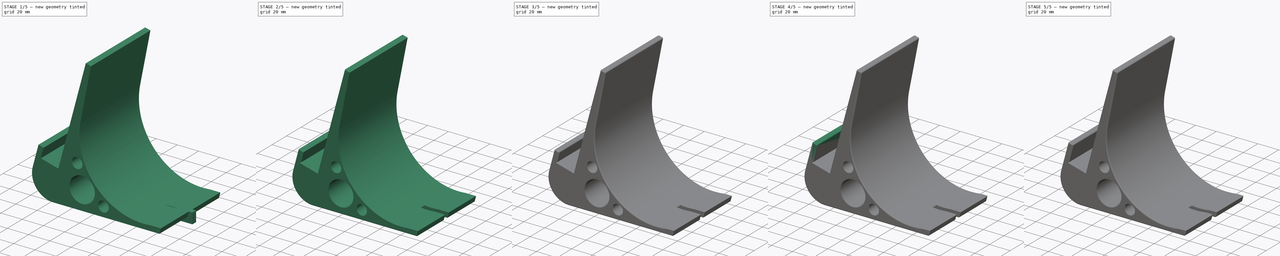
[diagram: build sequence overview — one tinted view per stage of 5, left to right]
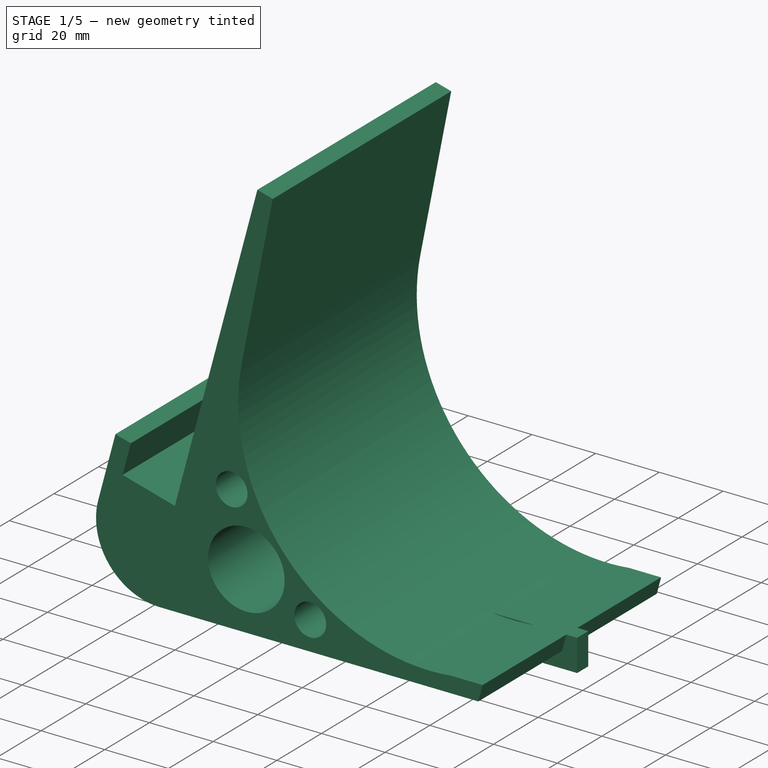
[diagram: stage 1 of 5 — iso view after this stage's code; geometry added in this stage tinted green]
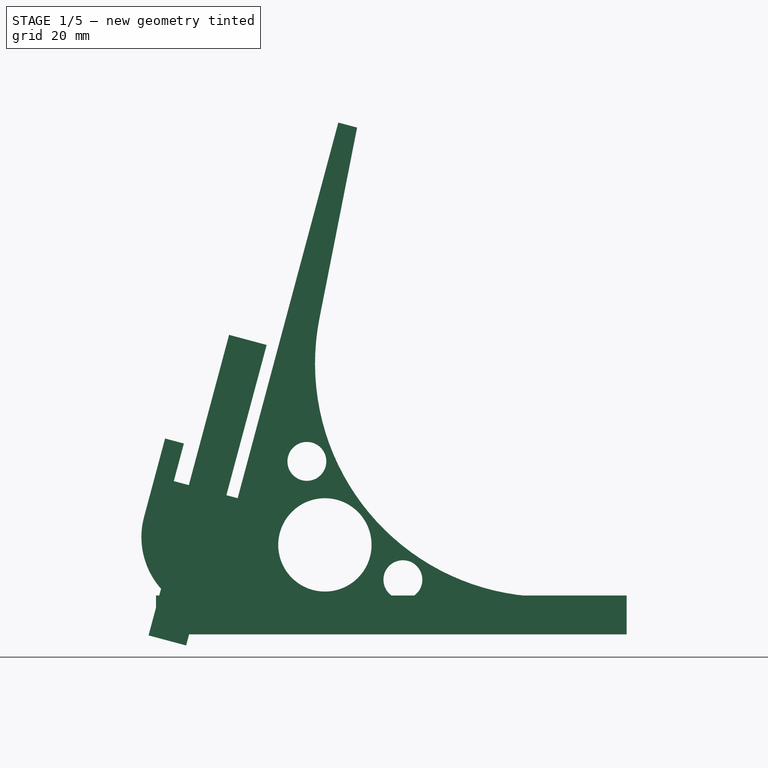
[diagram: stage 1 of 5 — front view after this stage's code; geometry added in this stage tinted green]
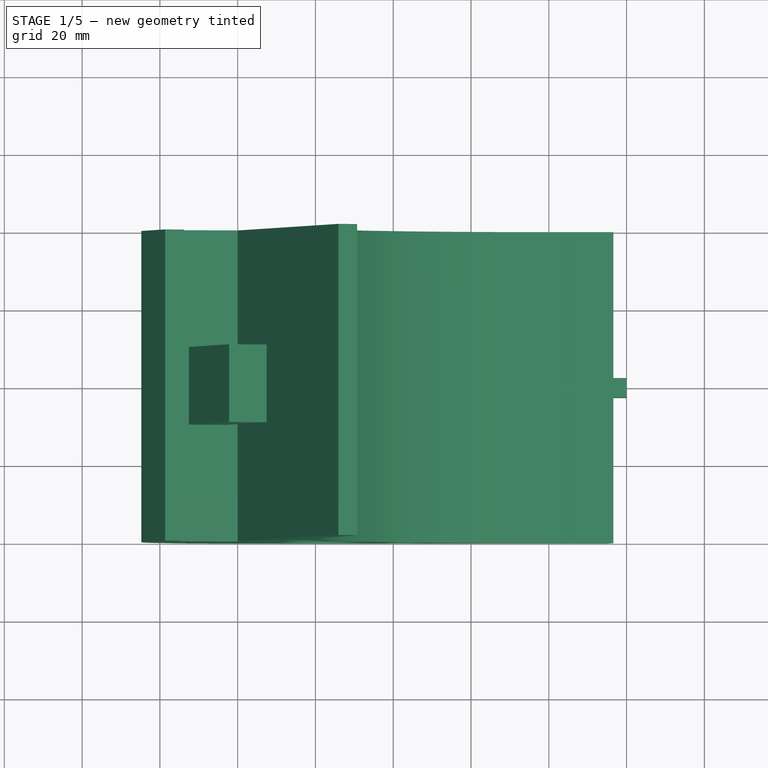
[diagram: stage 1 of 5 — top view after this stage's code; geometry added in this stage tinted green]
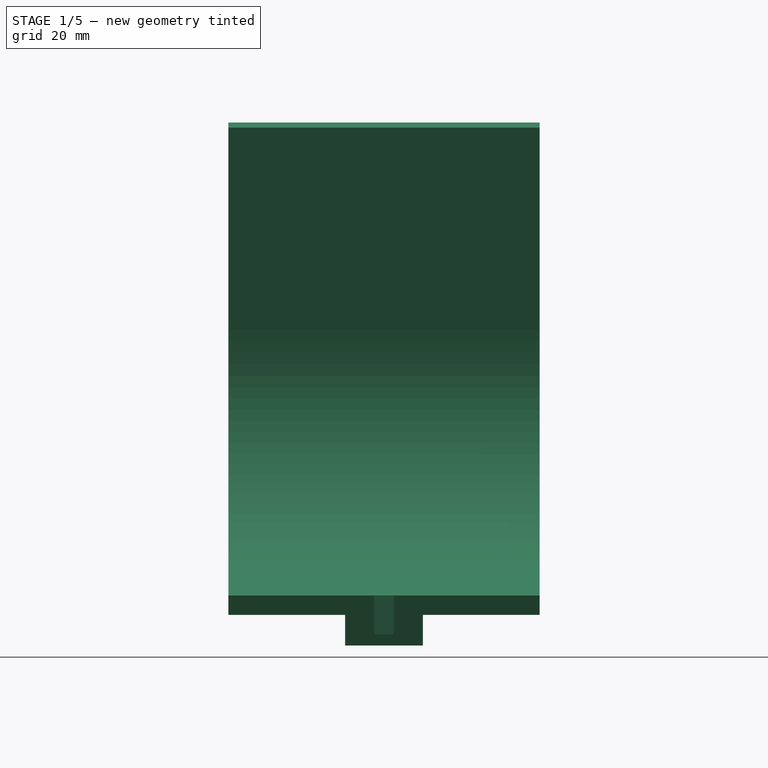
[diagram: stage 1 of 5 — right view after this stage's code; geometry added in this stage tinted green]
FCSTD DOCUMENT  (FreeCAD 0.16R6703 (Git))
Label: bee
License: All rights reserved
LicenseURL: http://en.wikipedia.org/wiki/All_rights_reserved
objects: PartDesign::Fillet×17, Sketcher::SketchObject×3, PartDesign::Pad×3, Part::MultiFuse×1, Part::Cut×1
note: 28 computed .brp shape members not serialized (recipe doc carries the construction recipe); baked Part::Feature solids carry a one-line shape summary decoded from their .brp

FEATURE [Sketcher::SketchObject] Sketch
  Placement = pos=(0,0,0) rot=(1,0,0;1.5708rad)
  sketch-geometry (28):
    g0: LineSegment StartX=0 StartY=0 StartZ=0 EndX=-16.4207 EndY=4.39992 EndZ=0
    g1: LineSegment StartX=-16.4207 StartY=4.39992 StartZ=0 EndX=-13.8325 EndY=14.0592 EndZ=0
    g2: LineSegment StartX=-13.8325 StartY=14.0592 StartZ=0 EndX=-18.6622 EndY=15.3533 EndZ=0
    g3: LineSegment StartX=-18.6622 StartY=15.3533 StartZ=0 EndX=-24.0686 EndY=-4.82362 EndZ=0
    g4: LineSegment StartX=-4.75004 StartY=-30 StartZ=0 EndX=95.25 EndY=-30 EndZ=0
    g5: LineSegment StartX=95.25 StartY=-30 StartZ=0 EndX=96.5897 EndY=-25 EndZ=0
    g6: LineSegment StartX=96.5897 StartY=-25 StartZ=0 EndX=86.5897 EndY=-25 EndZ=0
    g7: LineSegment StartX=21.0281 StartY=46.2451 StartZ=0 EndX=30.7115 EndY=95.2985 EndZ=0
    g8: LineSegment StartX=30.7115 StartY=95.2985 StartZ=0 EndX=25.8819 EndY=96.5926 EndZ=0
    g9: LineSegment StartX=25.8819 StartY=96.5926 StartZ=0 EndX=0 EndY=0 EndZ=0
    g10: ArcOfCircle CenterX=-4.75004 CenterY=-10 CenterZ=0 NormalX=0 NormalY=0 NormalZ=1 Radius=20 StartAngle=2.87979 EndAngle=4.71239
    g11: ArcOfCircle CenterX=79.8921 CenterY=34.625 CenterZ=0 NormalX=0 NormalY=0 NormalZ=1 Radius=60 StartAngle=2.94669 EndAngle=4.82425
    g12: Circle CenterX=17.795 CenterY=9.46662 CenterZ=0 NormalX=0 NormalY=0 NormalZ=1 Radius=5
    g13: Circle CenterX=22.4281 CenterY=-12 CenterZ=0 NormalX=0 NormalY=0 NormalZ=1 Radius=12
    g14: Circle CenterX=42.4796 CenterY=-20.9565 CenterZ=0 NormalX=0 NormalY=0 NormalZ=1 Radius=5
    g15: Circle [constr] CenterX=79.8921 CenterY=34.625 CenterZ=0 NormalX=0 NormalY=0 NormalZ=1 Radius=62
    g16: LineSegment [constr] StartX=22.4281 StartY=-12 StartZ=0 EndX=79.8921 EndY=34.625 EndZ=0
    g17: LineSegment [constr] StartX=17.795 StartY=9.46662 StartZ=0 EndX=79.8921 EndY=34.625 EndZ=0
    g18: LineSegment [constr] StartX=79.8921 StartY=34.625 StartZ=0 EndX=42.4796 EndY=-20.9565 EndZ=0
    g19: GeomPoint [constr] X=31.7466 Y=-4.43919 Z=0
    g20: GeomPoint [constr] X=31.7466 Y=-4.43919 Z=0
    g21: GeomPoint [constr] X=31.7466 Y=-4.43919 Z=0
    g22: GeomPoint [constr] X=22.4291 Y=11.3441 Z=0
    g23: GeomPoint [constr] X=22.4291 Y=11.3441 Z=0
    g24: GeomPoint [constr] X=22.4291 Y=11.3441 Z=0
    g25: GeomPoint [constr] X=45.2716 Y=-16.8086 Z=0
    g26: GeomPoint [constr] X=45.2716 Y=-16.8086 Z=0
    g27: GeomPoint [constr] X=45.2716 Y=-16.8086 Z=0
  constraints (63):
    c: Coincident(g-1,g0)
    c: Coincident(g0,g1)
    c: Coincident(g1,g2)
    c: Coincident(g2,g3)
    c: Horizontal(g4)
    c: Coincident(g4,g5)
    c: Coincident(g5,g6)
    c: Horizontal(g6)
    c: Coincident(g7,g8)
    c: Coincident(g8,g9)
    c: Coincident(g9,g0)
    c: Angle(g4,g9) = 1.309
    c: Parallel(g9,g1)
    c: Parallel(g1,g3)
    c: Parallel(g3,g5)
    c: Perpendicular(g0,g9)
    c: Perpendicular(g9,g8)
    c: Distance(g0) = 17
    c: Distance(g1) = 10
    c: Perpendicular(g1,g2)
    c: Tangent(g3,g10) = -1.5708
    c: Tangent(g4,g10) = -1.5708
    c: Tangent(g7,g11) = 1.5708
    c: Distance(g8) = 5
    c: Distance(g9) = 100
    c: DistanceY(g4,g-1) = 30
    c: DistanceX(g4,g4) = 100
    c: Radius(g11) = 60
    c: DistanceX(g6,g6) = 10
    c: Distance(g2) = 5
    c: Radius(g10) = 20
    c: Distance(g7) = 50
    c: Coincident(g6,g11)
    c: DistanceY(g4,g5) = 5
    c: Tangent(g13,g-1)
    c: Coincident(g15,g11)
    c: Radius(g15) = 62
    c: Equal(g12,g14)
    c: Coincident(g16,g13)
    c: Coincident(g16,g11)
    c: Coincident(g17,g12)
    c: Coincident(g17,g11)
    c: Coincident(g18,g11)
    c: Coincident(g18,g14)
    c: PointOnObject(g19,g15)
    c: PointOnObject(g20,g13)
    c: Coincident(g20,g19)
    c: PointOnObject(g21,g16)
    c: Coincident(g19,g21)
    c: PointOnObject(g22,g15)
    c: PointOnObject(g23,g12)
    c: Coincident(g23,g22)
    c: PointOnObject(g24,g17)
    c: Coincident(g22,g24)
    c: PointOnObject(g25,g15)
    c: PointOnObject(g26,g14)
    c: Coincident(g25,g26)
    c: PointOnObject(g27,g18)
    c: Coincident(g25,g27)
    c: Angle(g17,g16) = 0.296706
    c: Angle(g16,g18) = 0.296706
    c: Radius(g13) = 12
    c: Radius(g12) = 5
FEATURE [Sketcher::SketchObject] Sketch001
  Placement = pos=(0,0,0) rot=(0.130526,0,0.991445;3.14159rad)
  sketch-geometry (4):
    g0: LineSegment StartX=3 StartY=10 StartZ=0 EndX=13 EndY=10 EndZ=0
    g1: LineSegment StartX=13 StartY=10 StartZ=0 EndX=13 EndY=-10 EndZ=0
    g2: LineSegment StartX=13 StartY=-10 StartZ=0 EndX=3 EndY=-10 EndZ=0
    g3: LineSegment StartX=3 StartY=-10 StartZ=0 EndX=3 EndY=10 EndZ=0
  constraints (12):
    c: Coincident(g0,g1)
    c: Coincident(g1,g2)
    c: Coincident(g2,g3)
    c: Coincident(g3,g0)
    c: Horizontal(g0)
    c: Horizontal(g2)
    c: Vertical(g1)
    c: Vertical(g3)
    c: Symmetric(g0,g1,g-1)
    c: DistanceY(g1,g1) = 20
    c: DistanceX(g0,g0) = 10
    c: DistanceX(g-1,g2) = 3
FEATURE [PartDesign::Pad] Pad001
  Length = 80
  Length2 = 100
  Midplane = true
  Placement = pos=(0,0,0) rot=(0.130526,0,0.991445;3.14159rad)
  Sketch = -> Sketch001
  Type = 0
FEATURE [Sketcher::SketchObject] Sketch002
  Placement = pos=(0,0,-30) rot=(1,0,0;3.14159rad)
  sketch-geometry (4):
    g0: LineSegment StartX=-21 StartY=2.5 StartZ=0 EndX=100 EndY=2.5 EndZ=0
    g1: LineSegment StartX=100 StartY=2.5 StartZ=0 EndX=100 EndY=-2.5 EndZ=0
    g2: LineSegment StartX=100 StartY=-2.5 StartZ=0 EndX=-21 EndY=-2.5 EndZ=0
    g3: LineSegment StartX=-21 StartY=-2.5 StartZ=0 EndX=-21 EndY=2.5 EndZ=0
  constraints (12):
    c: Coincident(g0,g1)
    c: Coincident(g1,g2)
    c: Coincident(g2,g3)
    c: Coincident(g3,g0)
    c: Horizontal(g0)
    c: Horizontal(g2)
    c: Vertical(g1)
    c: Vertical(g3)
    c: Symmetric(g0,g1,g-1)
    c: DistanceY(g1,g1) = 5
    c: DistanceX(g0,g0) = 121
    c: DistanceX(g-1,g0) = 100
FEATURE [PartDesign::Pad] Pad002
  Length = 10
  Length2 = 100
  Midplane = true
  Placement = pos=(0,0,-30) rot=(1,0,0;3.14159rad)
  Sketch = -> Sketch002
  Type = 0
FEATURE [PartDesign::Pad] Pad
  Length = 80
  Length2 = 100
  Midplane = true
  Placement = pos=(0,0,0) rot=(1,0,0;1.5708rad)
  Sketch = -> Sketch
  Type = 0
FEATURE [Part::MultiFuse] Fusion
  Shapes = -> [Pad002,Pad001]
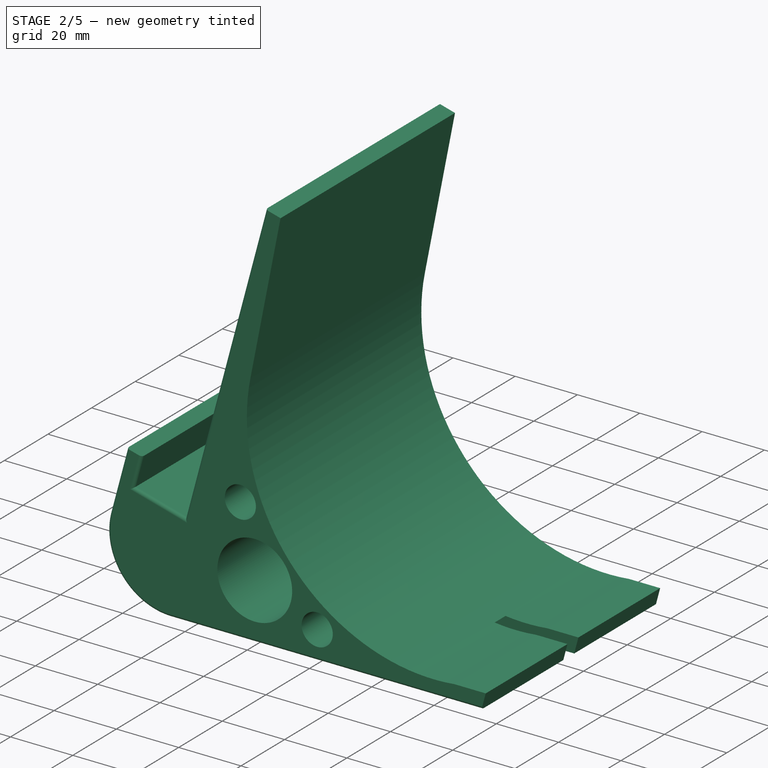
[diagram: stage 2 of 5 — iso view after this stage's code; geometry added in this stage tinted green]
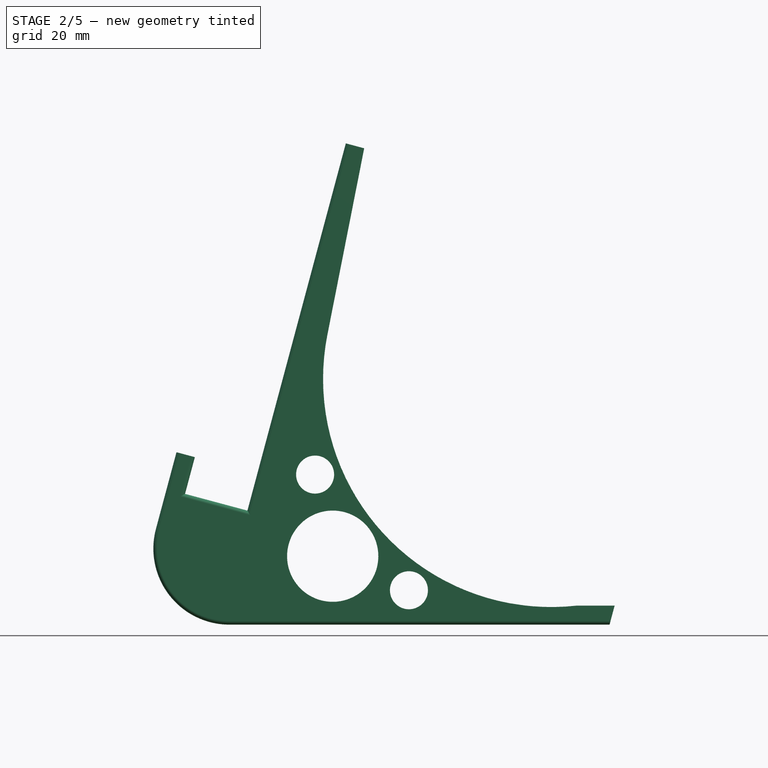
[diagram: stage 2 of 5 — front view after this stage's code; geometry added in this stage tinted green]
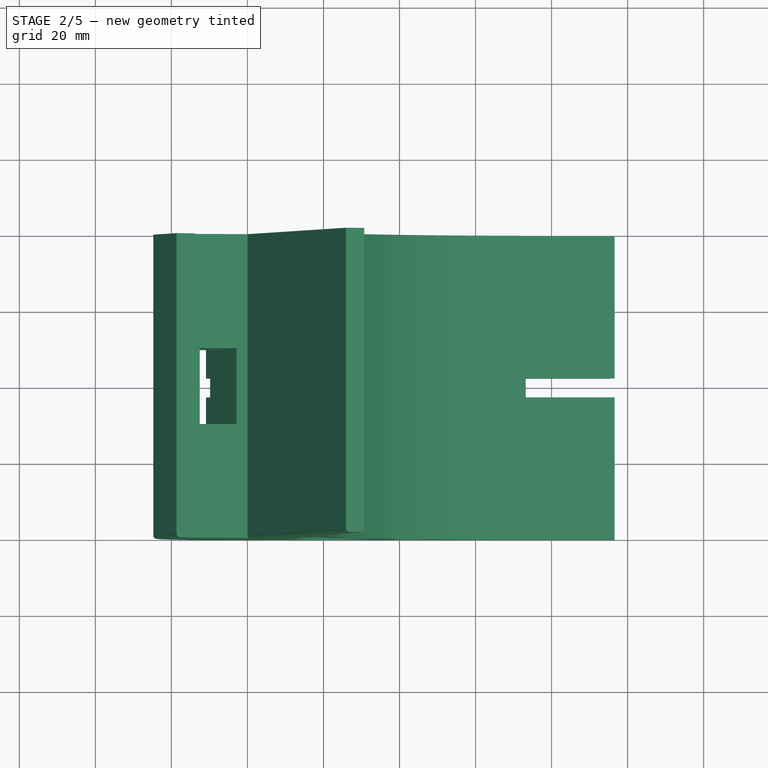
[diagram: stage 2 of 5 — top view after this stage's code; geometry added in this stage tinted green]
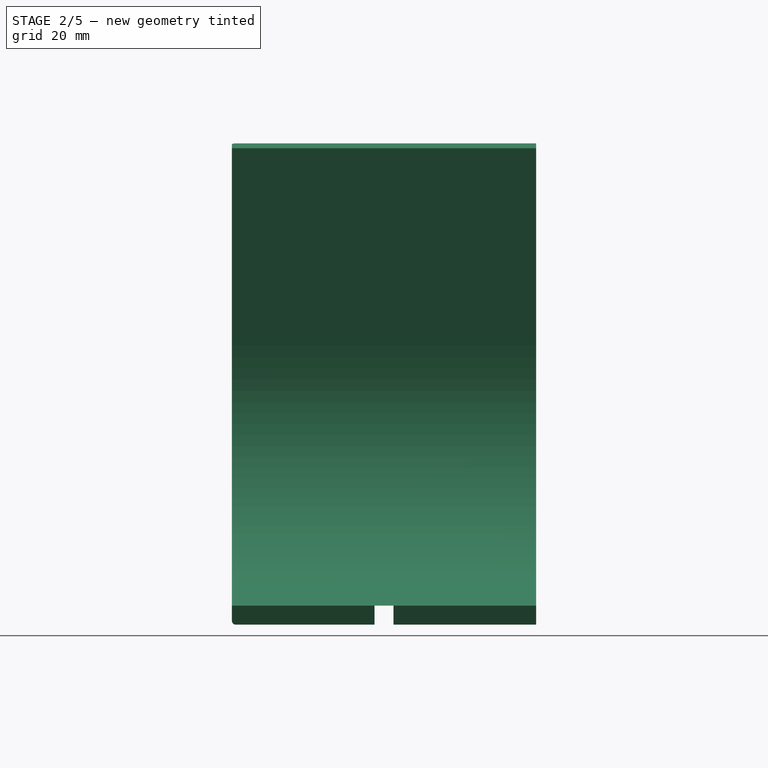
[diagram: stage 2 of 5 — right view after this stage's code; geometry added in this stage tinted green]
FEATURE [Part::Cut] Cut
  Base = -> Pad
  Tool = -> Fusion
FEATURE [PartDesign::Fillet] Fillet
  Base = -> Cut [Edge29]
  Radius = 1
FEATURE [PartDesign::Fillet] Fillet001
  Base = -> Fillet [Edge6]
  Radius = 1
FEATURE [PartDesign::Fillet] Fillet002
  Base = -> Fillet001 [Edge13]
  Radius = 1
FEATURE [PartDesign::Fillet] Fillet003
  Base = -> Fillet002 [Edge13]
  Radius = 1
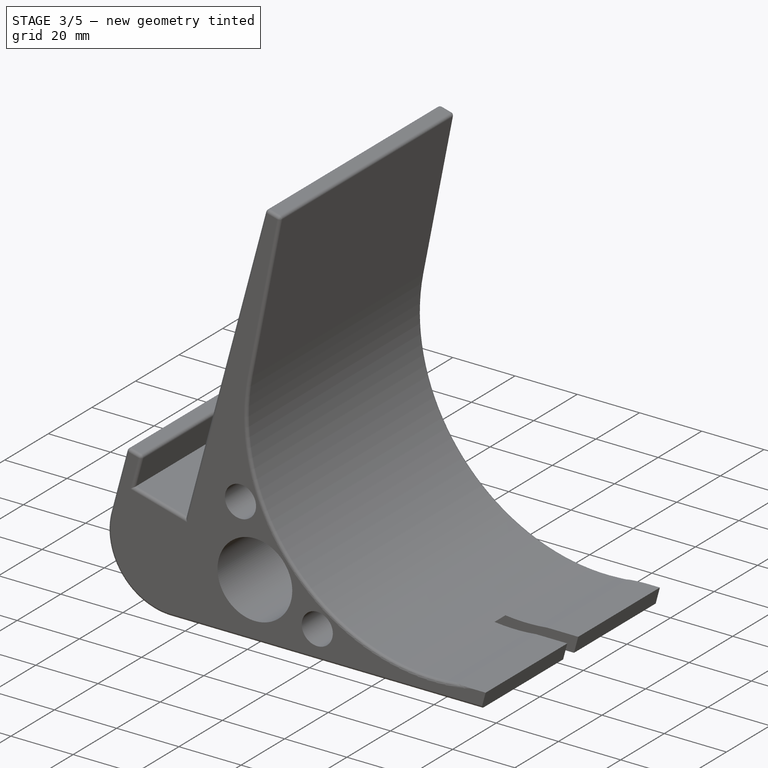
[diagram: stage 3 of 5 — iso view after this stage's code; geometry added in this stage tinted green]
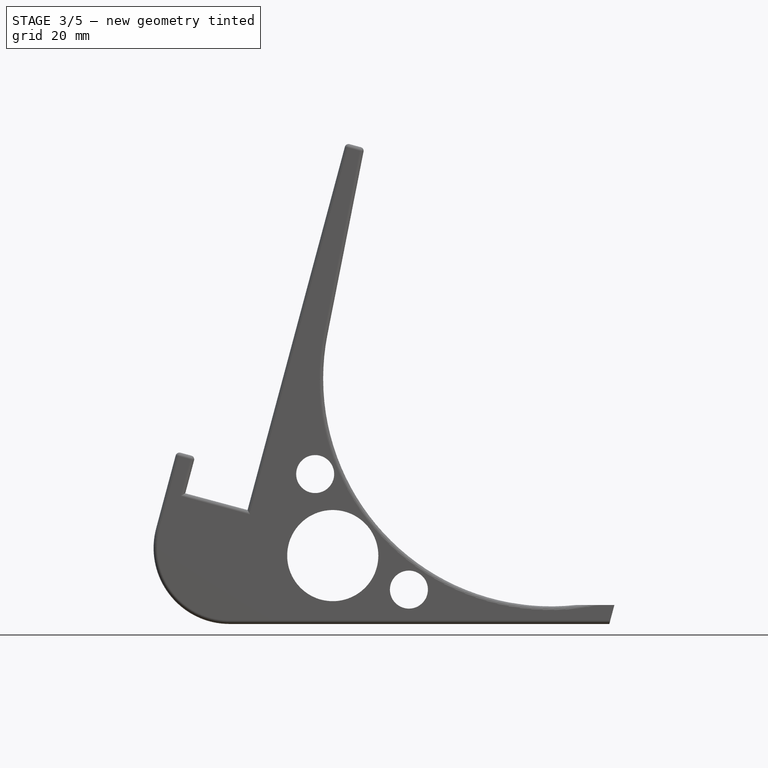
[diagram: stage 3 of 5 — front view after this stage's code; geometry added in this stage tinted green]
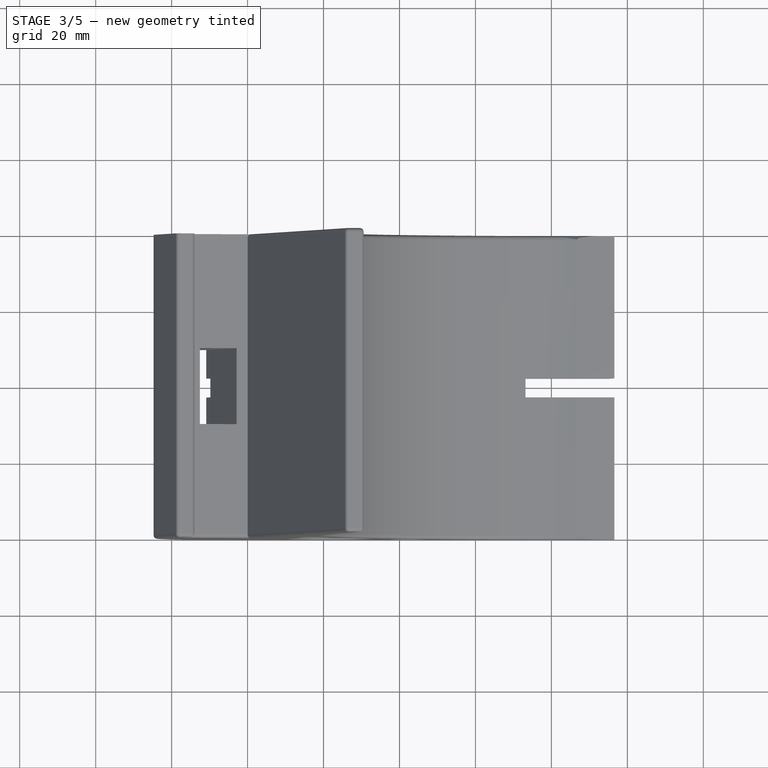
[diagram: stage 3 of 5 — top view after this stage's code; geometry added in this stage tinted green]
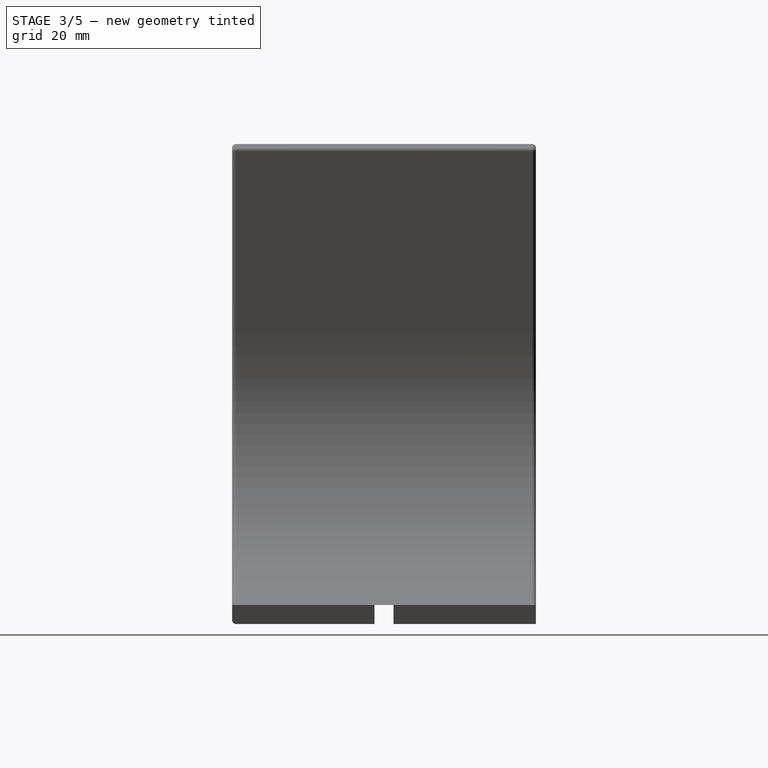
[diagram: stage 3 of 5 — right view after this stage's code; geometry added in this stage tinted green]
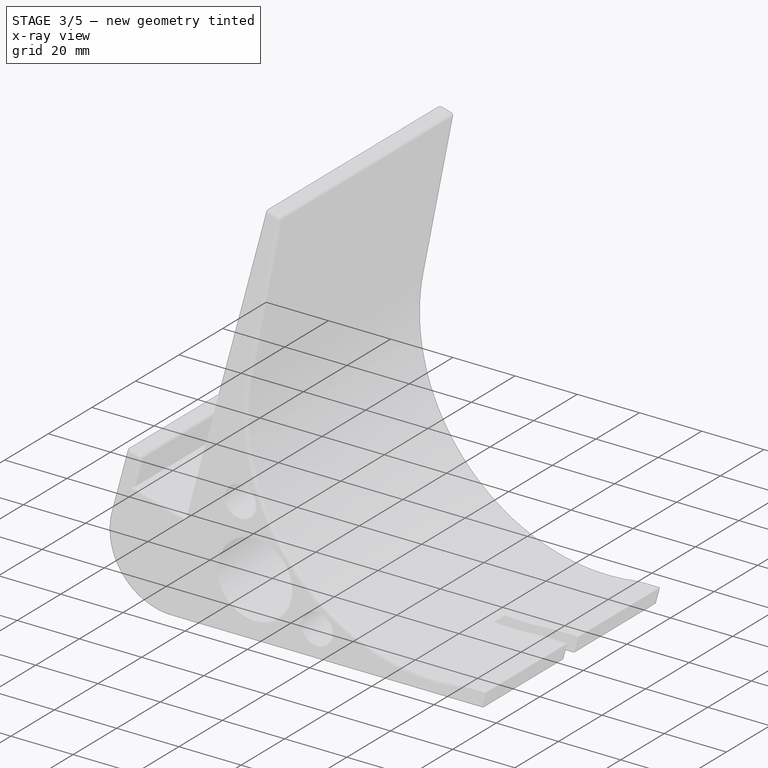
[diagram: stage 3 of 5 — x-ray composite at the iso view; earlier geometry ghosted, this stage's added geometry solid]
FEATURE [PartDesign::Fillet] Fillet004
  Base = -> Fillet003 [Edge5]
  Radius = 1
FEATURE [PartDesign::Fillet] Fillet005
  Base = -> Fillet004 [Edge23]
  Radius = 1
FEATURE [PartDesign::Fillet] Fillet006
  Base = -> Fillet005 [Edge49]
  Radius = 1
FEATURE [PartDesign::Fillet] Fillet007
  Base = -> Fillet006 [Edge111]
  Radius = 1
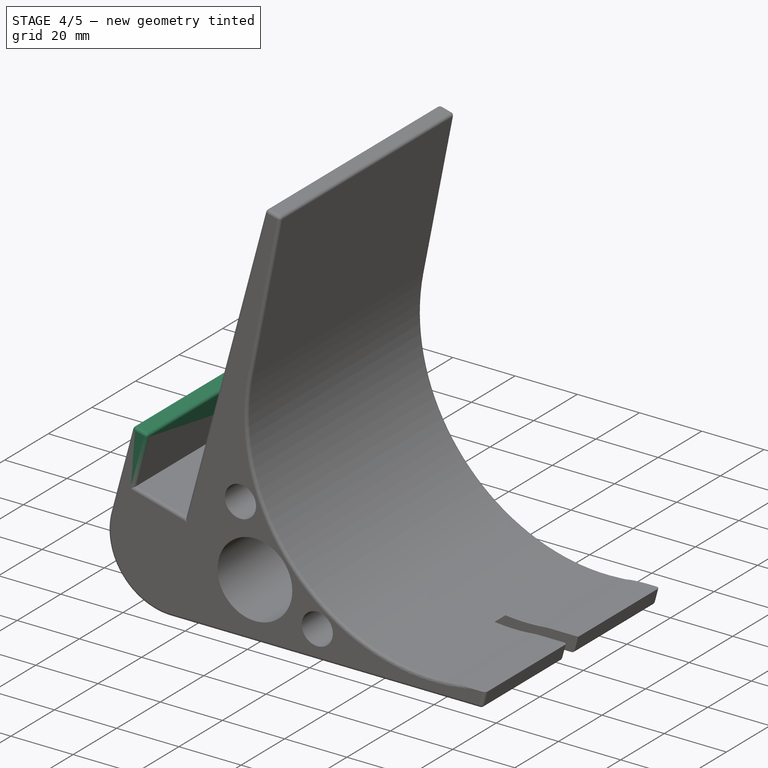
[diagram: stage 4 of 5 — iso view after this stage's code; geometry added in this stage tinted green]
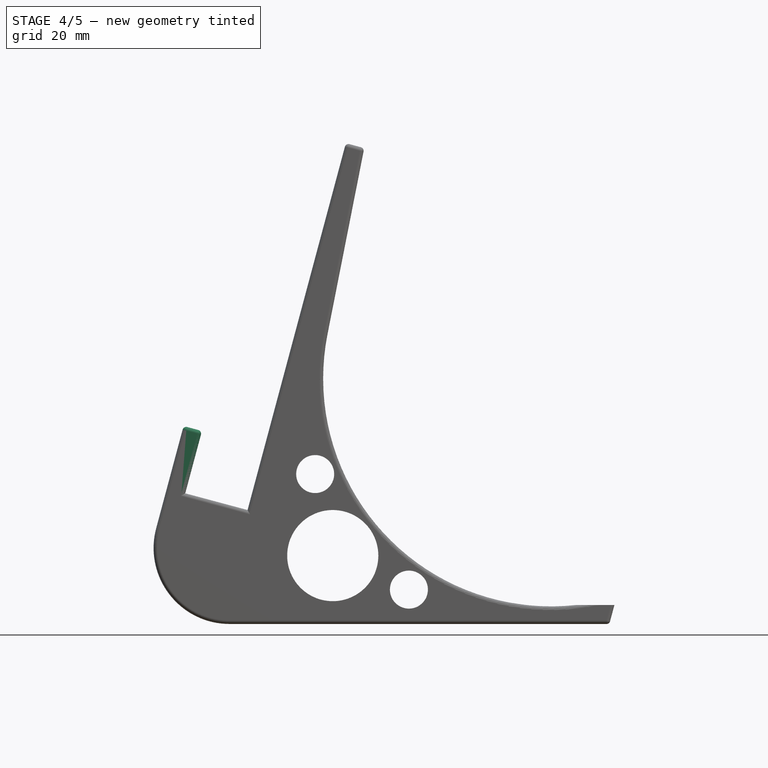
[diagram: stage 4 of 5 — front view after this stage's code; geometry added in this stage tinted green]
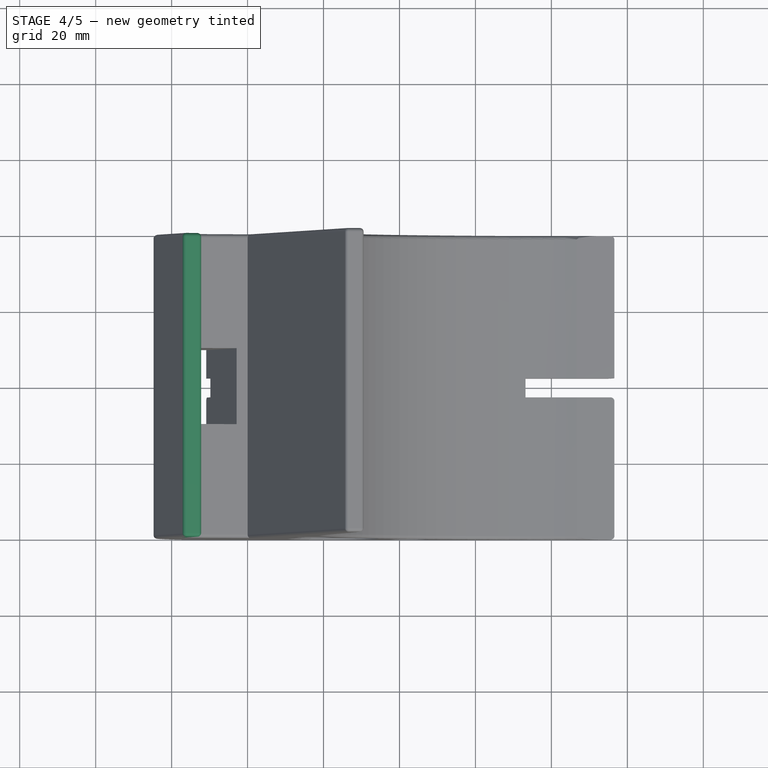
[diagram: stage 4 of 5 — top view after this stage's code; geometry added in this stage tinted green]
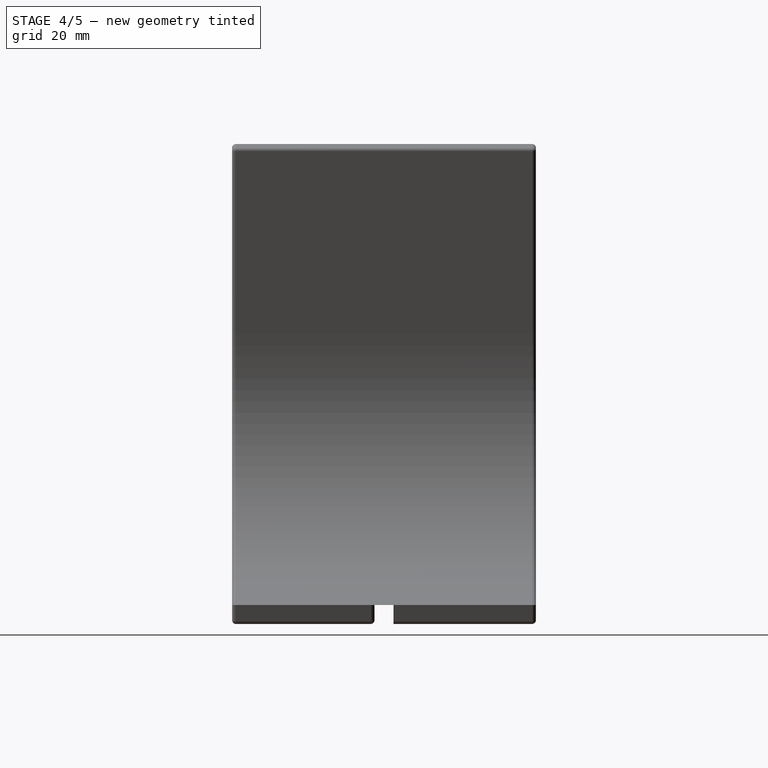
[diagram: stage 4 of 5 — right view after this stage's code; geometry added in this stage tinted green]
FEATURE [PartDesign::Fillet] Fillet008
  Base = -> Fillet007 [Edge47]
  Radius = 1
FEATURE [PartDesign::Fillet] Fillet009
  Base = -> Fillet008 [Edge14]
  Radius = 1
FEATURE [PartDesign::Fillet] Fillet010
  Base = -> Fillet009 [Edge160]
  Radius = 1
FEATURE [PartDesign::Fillet] Fillet011
  Base = -> Fillet010 [Edge147]
  Radius = 1
FEATURE [PartDesign::Fillet] Fillet012
  Base = -> Fillet011 [Edge145]
  Radius = 1
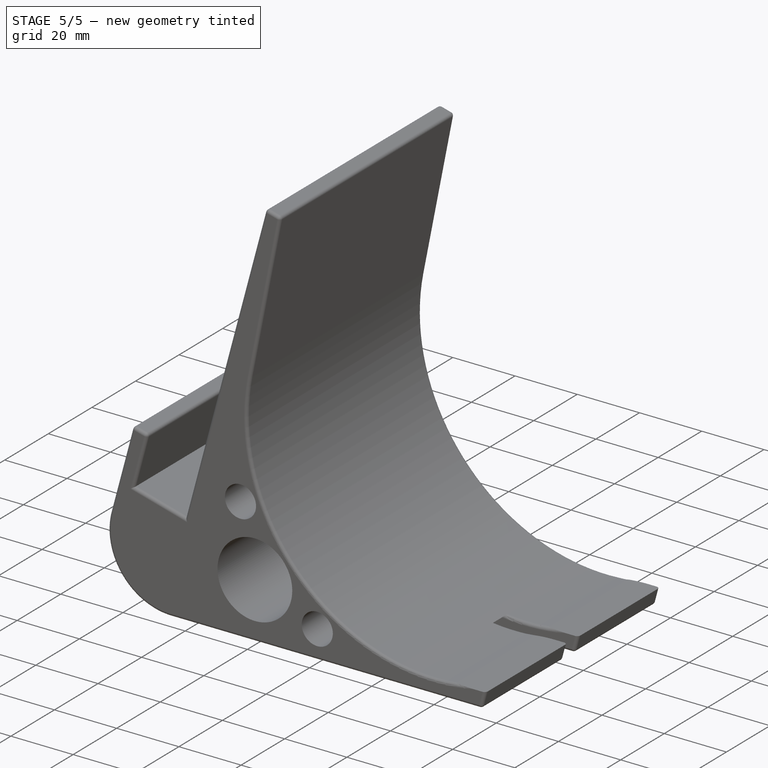
[diagram: stage 5 of 5 — iso view after this stage's code; geometry added in this stage tinted green]
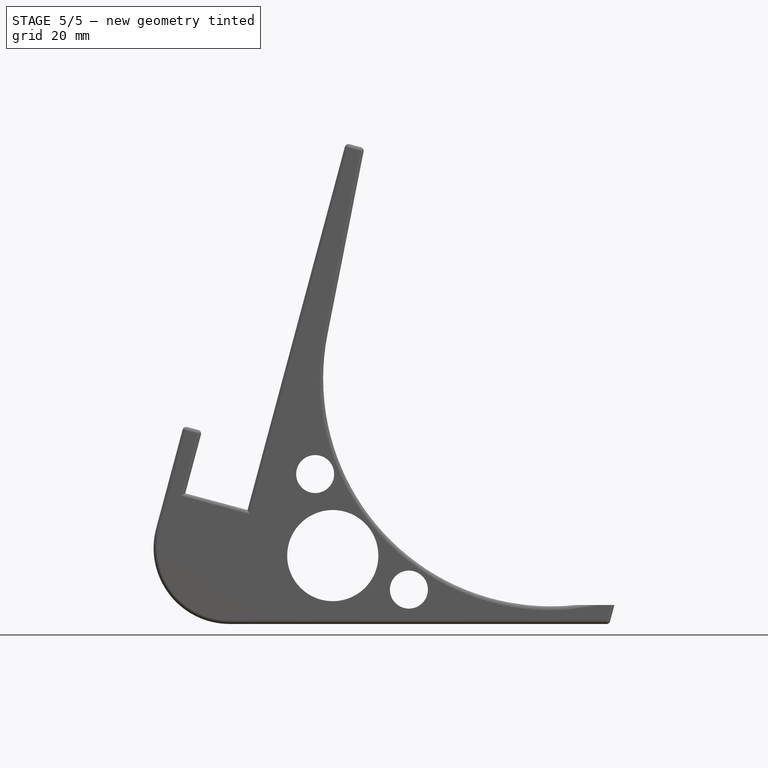
[diagram: stage 5 of 5 — front view after this stage's code; geometry added in this stage tinted green]
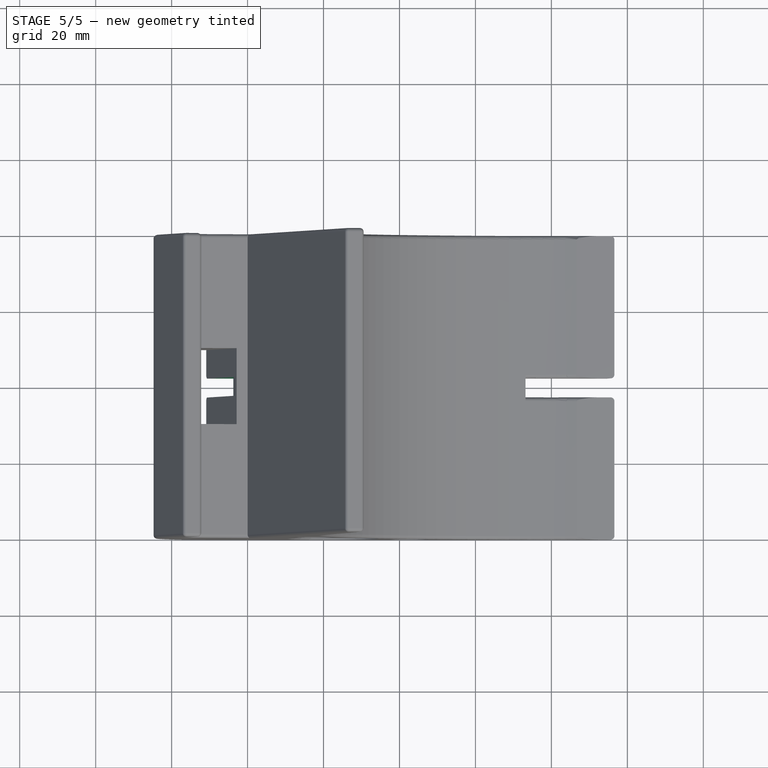
[diagram: stage 5 of 5 — top view after this stage's code; geometry added in this stage tinted green]
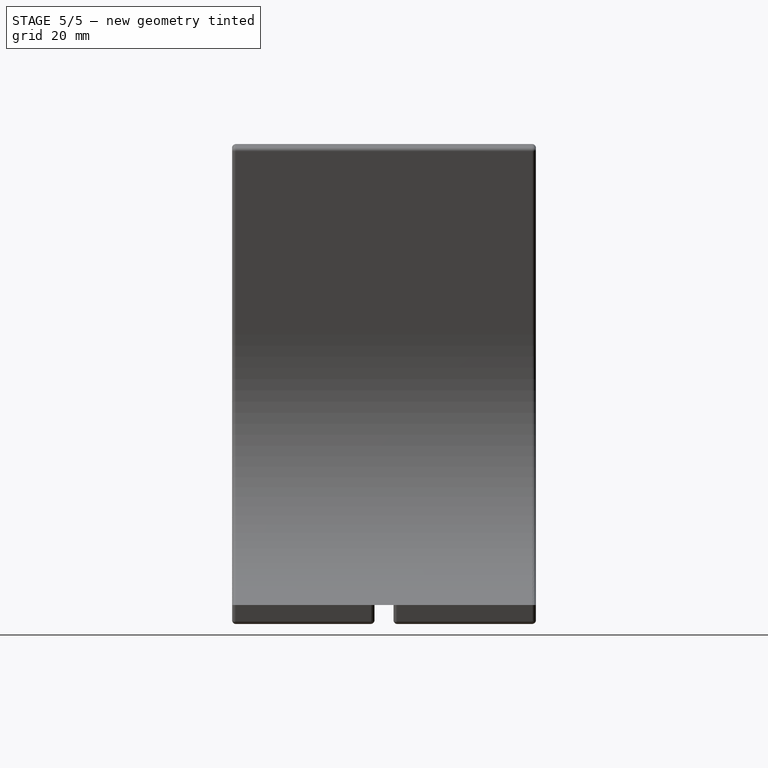
[diagram: stage 5 of 5 — right view after this stage's code; geometry added in this stage tinted green]
FEATURE [PartDesign::Fillet] Fillet013
  Base = -> Fillet012 [Edge40]
  Radius = 1
FEATURE [PartDesign::Fillet] Fillet014
  Base = -> Fillet013 [Edge81]
  Radius = 1
FEATURE [PartDesign::Fillet] Fillet015
  Base = -> Fillet014 [Edge47]
  Radius = 1
FEATURE [PartDesign::Fillet] Fillet016
  Base = -> Fillet015 [Edge43]
  Radius = 20
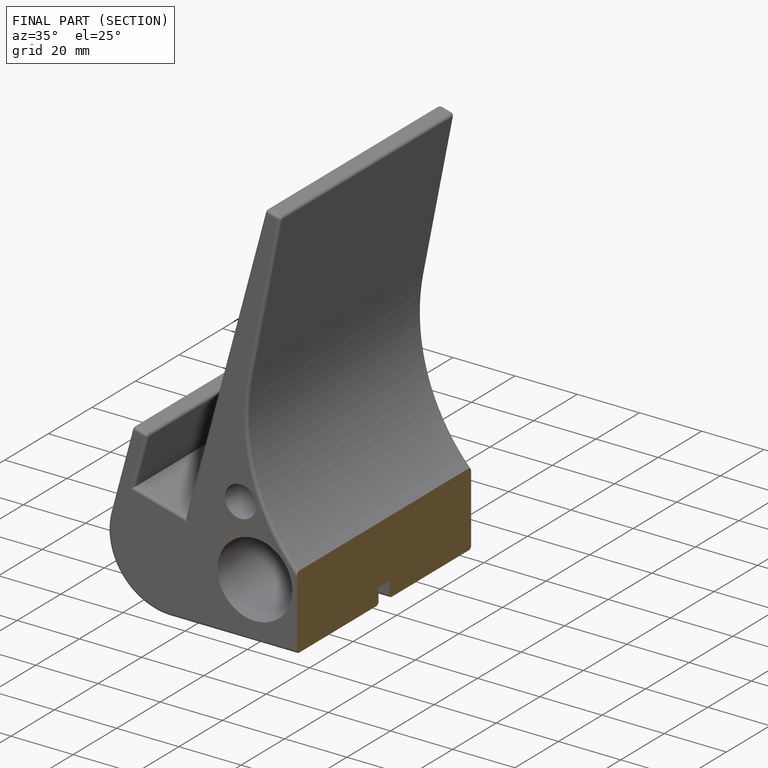
[diagram: finished part — half-section view (interior)]
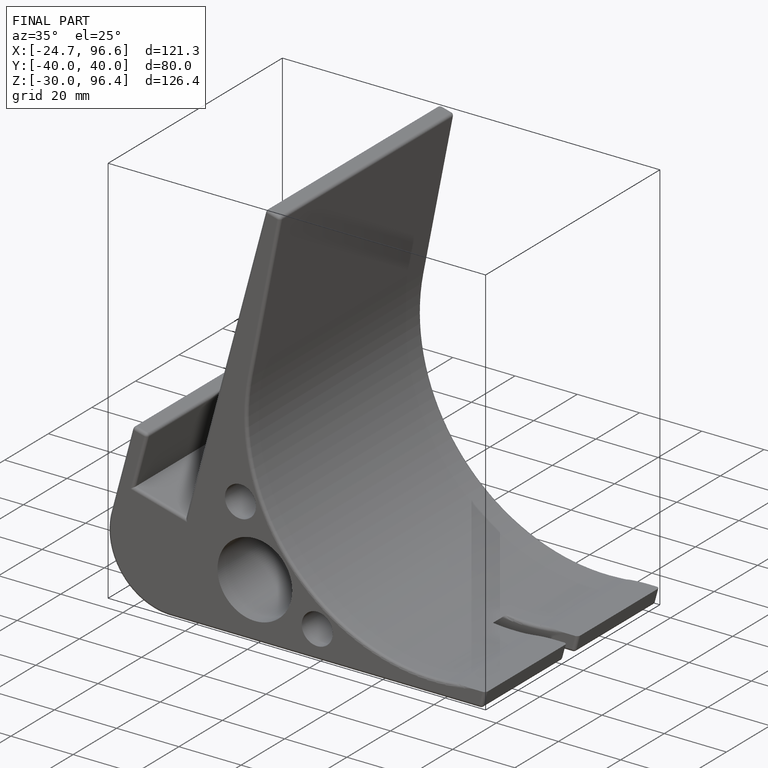
[diagram: finished part — iso view with bounding-box wireframe]
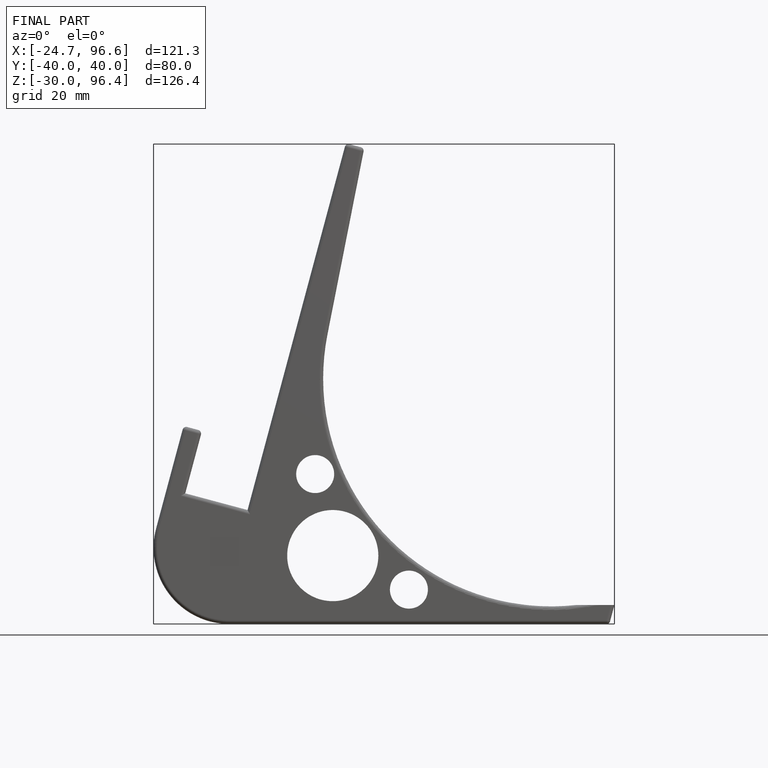
[diagram: finished part — front view with bounding-box wireframe]
